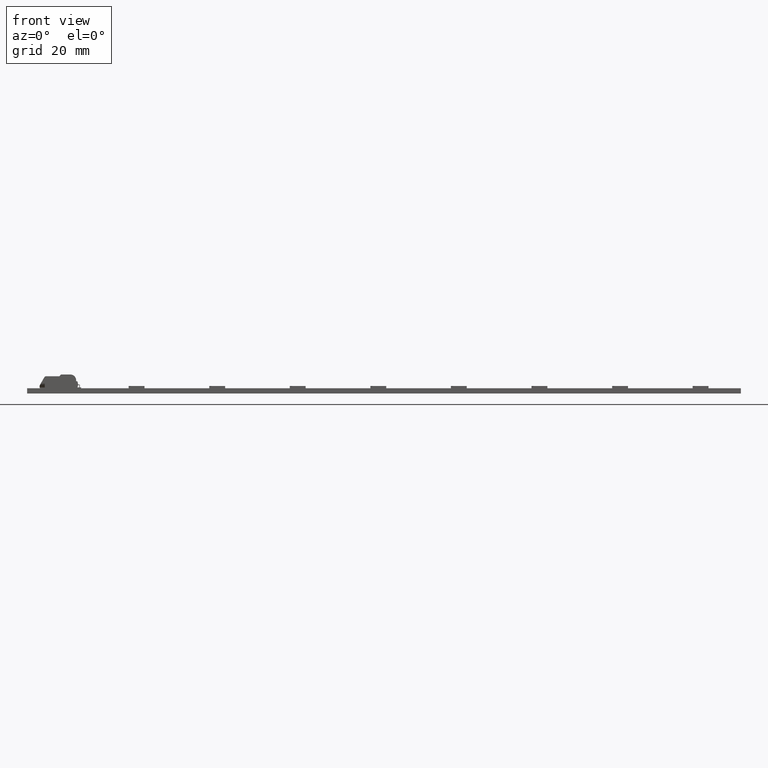
[diagram: clean part render]
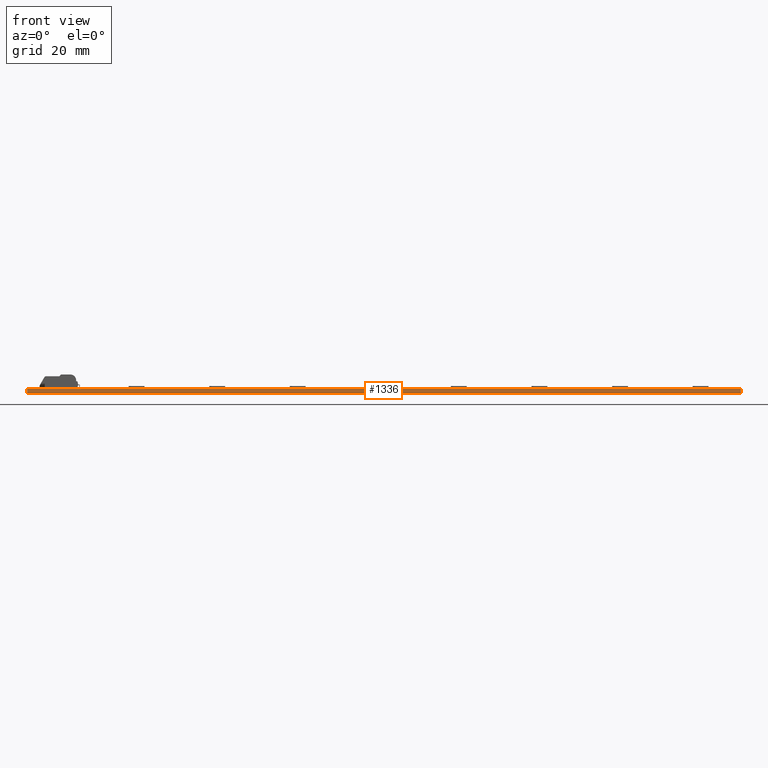
[diagram: same view with one face highlighted and labeled with its STEP entity id]
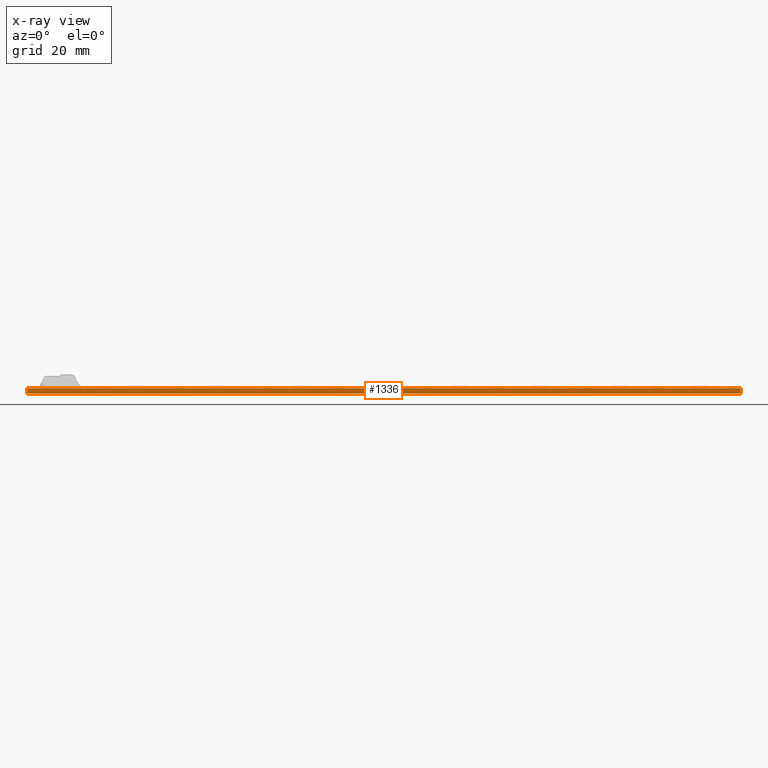
[diagram: x-ray of the same camera — body ghosted, the highlighted face saturated]
A machine part, front view. The second image highlights one B-rep face of the part: STEP entity #1336.
The next image is the same camera in x-ray: the body ghosted, the highlighted face saturated — about 0% of this face is hidden behind the body in this view.
In plain terms, the highlighted planar face has unit normal (0, 1, 0).
Its self-contained STEP definition (entity closure, byte-faithful):
#1336=ADVANCED_FACE('',(#1773),#1607,.F.);
#1607=PLANE('',#6048);
#1773=FACE_OUTER_BOUND('',#2017,.T.);
#2017=EDGE_LOOP('',(#2360,#2361,#2362,#2363));
#2360=ORIENTED_EDGE('',*,*,#4313,.T.);
#2361=ORIENTED_EDGE('',*,*,#4314,.F.);
#2362=ORIENTED_EDGE('',*,*,#4315,.F.);
#2363=ORIENTED_EDGE('',*,*,#4311,.T.);
#3814=VERTEX_POINT('',#8022);
#3815=VERTEX_POINT('',#8024);
#3816=VERTEX_POINT('',#8028);
#3817=VERTEX_POINT('',#8030);
#4311=EDGE_CURVE('',#3815,#3814,#5040,.T.);
#4313=EDGE_CURVE('',#3814,#3816,#5042,.T.);
#4314=EDGE_CURVE('',#3817,#3816,#5043,.T.);
#4315=EDGE_CURVE('',#3815,#3817,#5044,.T.);
#5040=LINE('',#8023,#5545);
#5042=LINE('',#8027,#5547);
#5043=LINE('',#8029,#5548);
#5044=LINE('',#8031,#5549);
#5545=VECTOR('',#6541,1.);
#5547=VECTOR('',#6545,1.);
#5548=VECTOR('',#6546,1.);
#5549=VECTOR('',#6547,1.);
#6048=AXIS2_PLACEMENT_3D('',#8032,#6548,#6549);
#6541=DIRECTION('',(0.,0.,1.));
#6545=DIRECTION('',(-1.,0.,0.));
#6546=DIRECTION('',(0.,0.,1.));
#6547=DIRECTION('',(-1.,0.,0.));
#6548=DIRECTION('',(0.,1.,0.));
#6549=DIRECTION('',(0.,0.,1.));
#8022=CARTESIAN_POINT('',(225.,0.,0.));
#8023=CARTESIAN_POINT('',(225.,0.,-1.65));
#8024=CARTESIAN_POINT('',(225.,0.,-1.65));
#8027=CARTESIAN_POINT('',(225.,0.,0.));
#8028=CARTESIAN_POINT('',(0.,0.,0.));
#8029=CARTESIAN_POINT('',(0.,0.,-1.65));
#8030=CARTESIAN_POINT('',(0.,0.,-1.65));
#8031=CARTESIAN_POINT('',(225.,0.,-1.65));
#8032=CARTESIAN_POINT('',(225.,0.,-1.65));